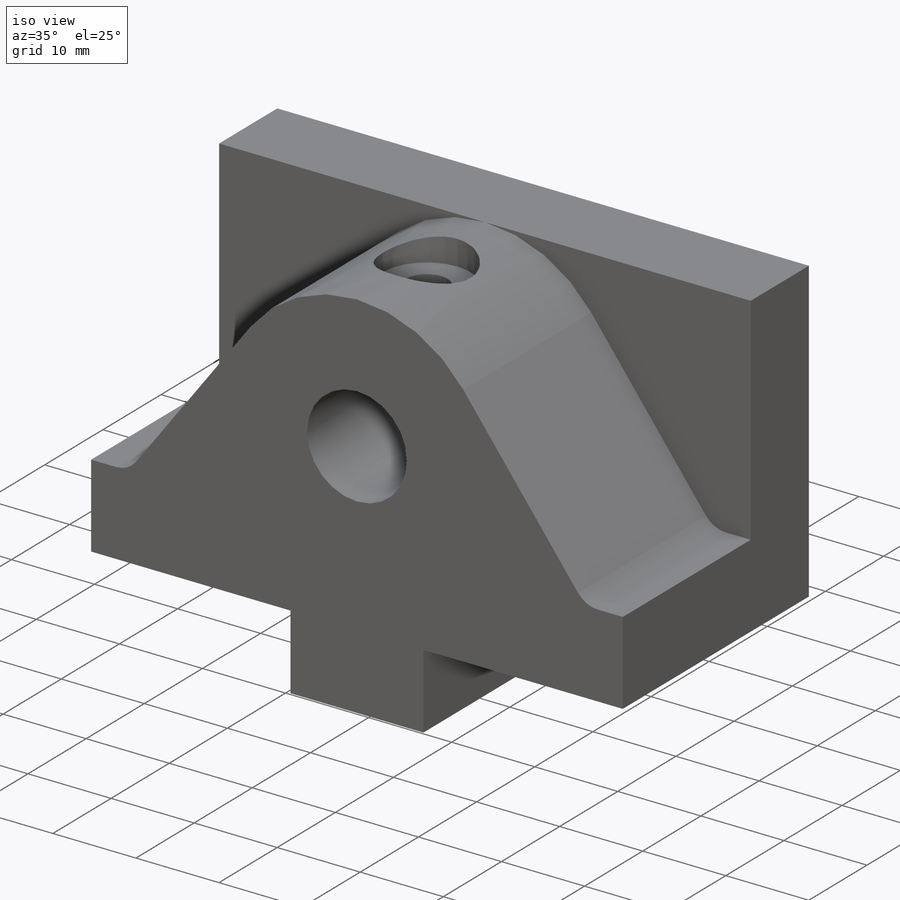
[diagram: iso view]
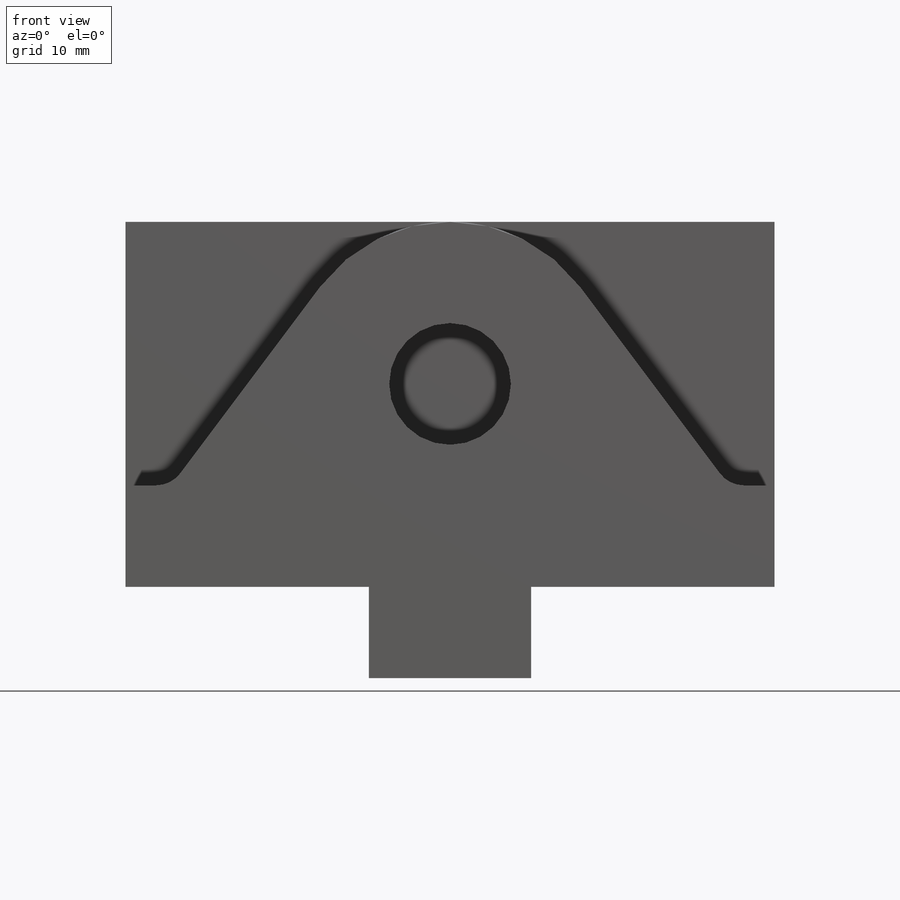
[diagram: front view]
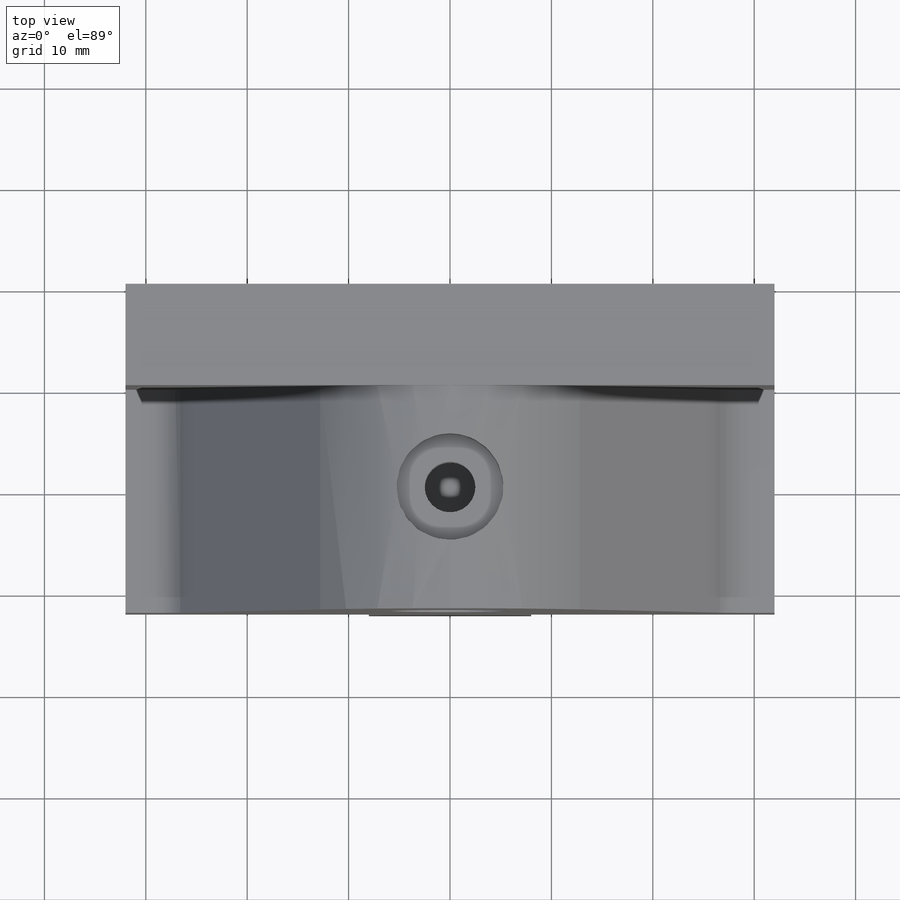
[diagram: top view]
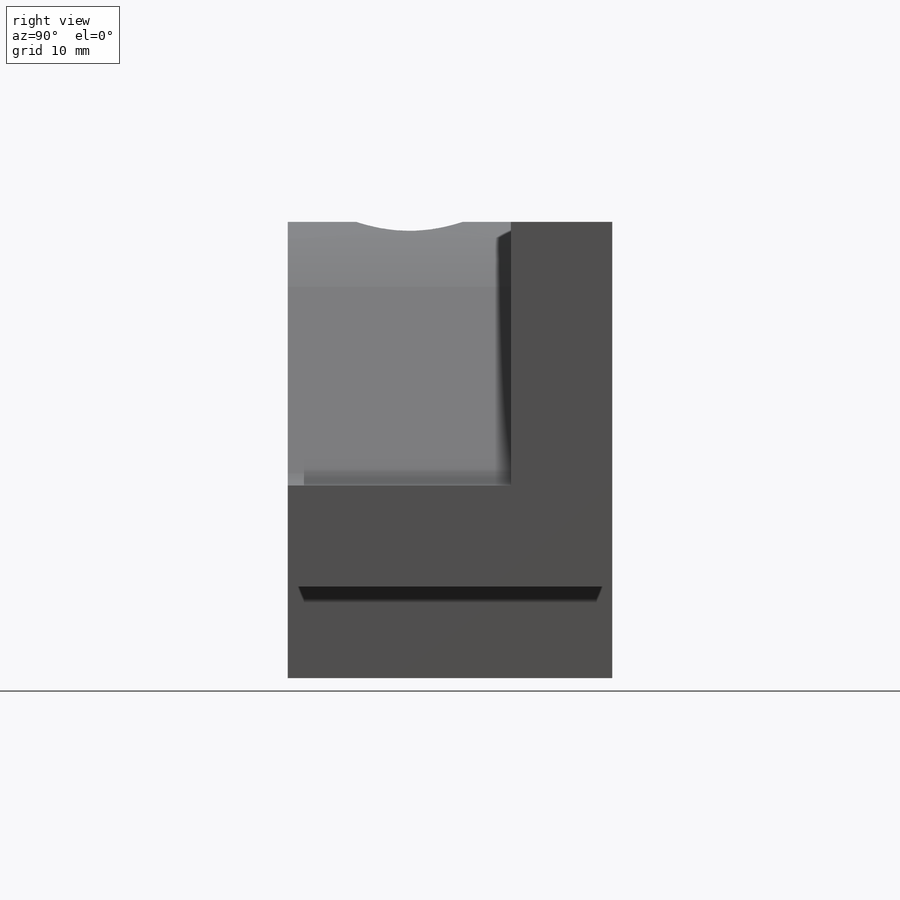
[diagram: right view]
SOLIDWORKS PART (.sldprt)
format: sldprt  version: not decoded by parser v0  size: 545,792 bytes
history: native  units: mm
features: sketch x7, hole x2, thread x2, material x1, extrude x1, cut_extrude x1, fillet x1 (+15 scaffold rows collapsed; 1 parser-record rows omitted)
feature tree (31):
  parser-record x1  (decoder bookkeeping rows leaked as tree rows — omitted from the tree; the rows remain in map.json)
  scaffold x15  (default folders/planes/origin — collapsed)
  material  "AISI 1020"
  sketch  "Sketch1"  dims[D1=64.0mm D2=36.0mm D3=9.0mm D4=16.0mm D5=23.0mm]
  extrude  "Extrude1"  Depth=32mm
  sketch  "Sketch2"  dims[D1=16.0mm D2=55.0mm D3=10.0mm]
  cut_extrude  "Cut-Extrude1"  Depth=22mm
  fillet  "Fillet1"  Radius=3mm
  sketch  "Sketch3"  dims[c1.D1=12.0mm c2.D1=24.0mm]
  hole  "Rebaixo para SBHCS M31"  Diameter=5mm Depth=10mm
  sketch  "3DSketch2"  dims[D1=20.0mm D2=32.0mm]
  sketch  "Sketch5"  dims[hole-wizard template sketch: 42 standard entries collapsed; hole parameters kept: c12.Thru Hole Depth=10.0mm c12.C'Bore Dia.=10.5mm c12.C'Bore Depth=3.0mm]
  hole  "Furo roscado de M6x1.01"  Diameter=5mm Depth=10mm
  sketch  "Esboço2"  dims[D1=8.0mm D2=8.0mm]
  sketch  "Esboço1"  dims[hole-wizard template sketch: 47 standard entries collapsed; hole parameters kept: c15.Tap Drill Depth=10.0mm c15.D3=~14.816244mm c15.Drill Angle=118.0deg]
  thread  "Rosca de furo1"  Diameter=8mm  [1 undecoded]
  thread  "Rosca de furo2"  Diameter=8mm  [1 undecoded]
decode coverage: 14 of 14 modeling features carry decoded parameters
note: ~ marks probable driven/reference dimensions
note: 2 parameter values undecoded
note: suppression state not decoded; provenance and decode notes live in map.json
